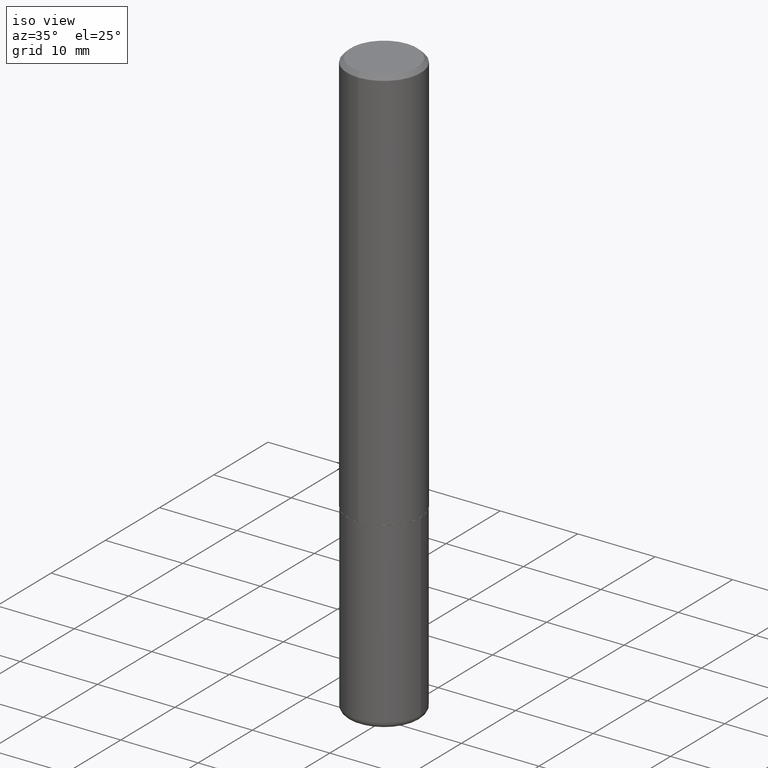
[diagram: clean part render]
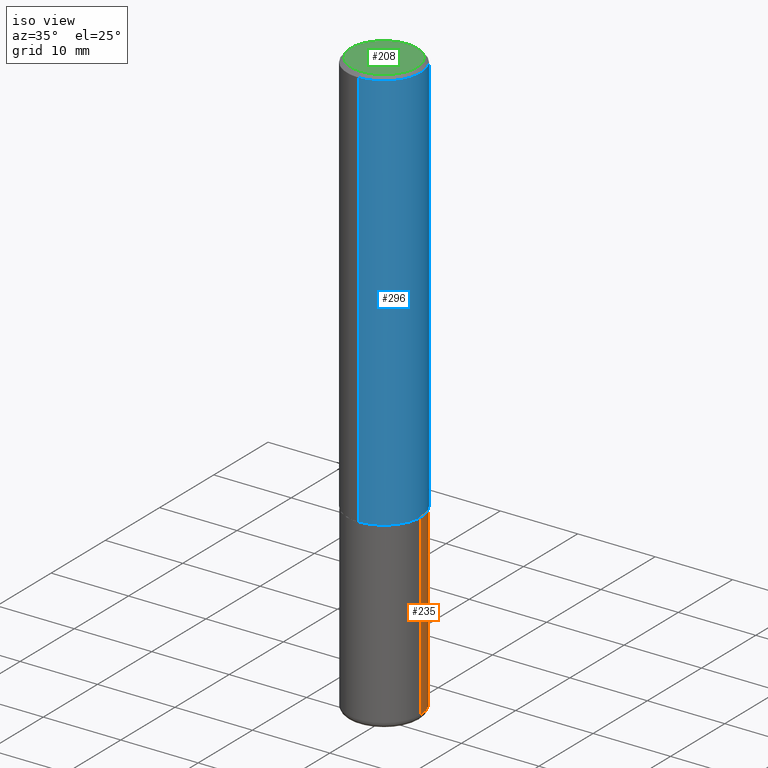
[diagram: same view with three faces highlighted in distinct colors, each labeled with its STEP entity id]
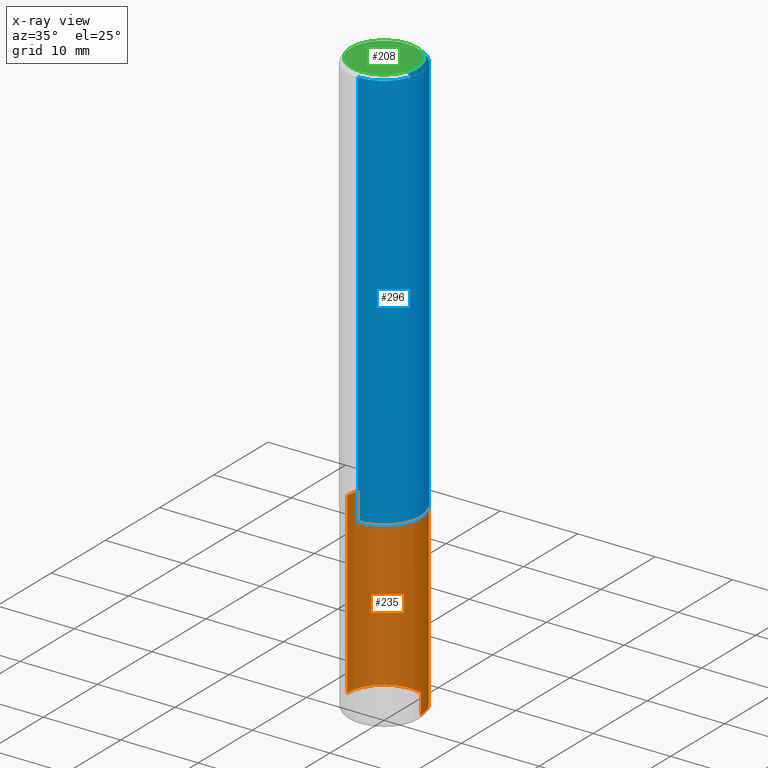
[diagram: x-ray of the same camera — body ghosted, the three highlighted faces saturated]
A machine part, iso view with three faces highlighted in distinct colors.
The next image is the same camera in x-ray (body ghosted, the three faces saturated) — at least one of them is partly hidden behind the body in this view.
Their STEP definitions:

[orange] entity #235 — the highlighted cylindrical surface (partial cylindrical patch) has radius 4.7625 mm, axis along (-0, 0, 1).
#7 = EDGE_CURVE ( 'NONE', #211, #114, #373, .T. ) ;
#9 = ORIENTED_EDGE ( 'NONE', *, *, #14, .F. ) ;
#14 = EDGE_CURVE ( 'NONE', #290, #372, #122, .T. ) ;
#27 = EDGE_CURVE ( 'NONE', #290, #211, #267, .T. ) ;
#29 = AXIS2_PLACEMENT_3D ( 'NONE', #119, #86, #209 ) ;
#38 = CARTESIAN_POINT ( 'NONE',  ( -0.1874999999999998335, -9.037431946813958291E-15, -2.970000000000000195 ) ) ;
#57 = ORIENTED_EDGE ( 'NONE', *, *, #274, .F. ) ;
#60 = DIRECTION ( 'NONE',  ( -2.445468806185136597E-29, 3.491481338843145583E-15, 1.000000000000000000 ) ) ;
#75 = FACE_OUTER_BOUND ( 'NONE', #94, .T. ) ;
#86 = DIRECTION ( 'NONE',  ( -2.445468806185136597E-29, 3.491481338843145583E-15, 1.000000000000000000 ) ) ;
#89 = CARTESIAN_POINT ( 'NONE',  ( 0.000000000000000000, 0.000000000000000000, 0.000000000000000000 ) ) ;
#93 = DIRECTION ( 'NONE',  ( 1.000000000000000000, -6.982962677686265922E-15, 4.876176775795935793E-29 ) ) ;
#94 = EDGE_LOOP ( 'NONE', ( #293, #178, #57, #9 ) ) ;
#114 = VERTEX_POINT ( 'NONE', #279 ) ;
#119 = CARTESIAN_POINT ( 'NONE',  ( 7.263042354369856275E-29, -1.036969957636414298E-14, -2.970000000000000195 ) ) ;
#122 = LINE ( 'NONE', #151, #336 ) ;
#133 = CARTESIAN_POINT ( 'NONE',  ( 0.1874999999999998335, -1.167900507843031957E-14, -2.970000000000000195 ) ) ;
#150 = CYLINDRICAL_SURFACE ( 'NONE', #329, 0.1875000000000000278 ) ;
#151 = CARTESIAN_POINT ( 'NONE',  ( 0.1875000000000000278, -1.309305502066175008E-15, 9.142831454617381013E-30 ) ) ;
#166 = CARTESIAN_POINT ( 'NONE',  ( 0.1875000000000000278, -8.510485763430163586E-15, -2.062500000000000000 ) ) ;
#171 = VECTOR ( 'NONE', #410, 39.37007874015748143 ) ;
#178 = ORIENTED_EDGE ( 'NONE', *, *, #7, .T. ) ;
#179 = DIRECTION ( 'NONE',  ( -2.445468806185136877E-29, 3.491481338843145188E-15, 1.000000000000000000 ) ) ;
#209 = DIRECTION ( 'NONE',  ( 1.000000000000000000, -6.982962677686261189E-15, 0.000000000000000000 ) ) ;
#211 = VERTEX_POINT ( 'NONE', #38 ) ;
#235 = ADVANCED_FACE ( 'NONE', ( #75 ), #150, .T. ) ;
#267 = CIRCLE ( 'NONE', #29, 0.1875000000000000278 ) ;
#274 = EDGE_CURVE ( 'NONE', #372, #114, #341, .T. ) ;
#279 = CARTESIAN_POINT ( 'NONE',  ( -0.1875000000000000278, -7.453172289313877932E-15, -2.062500000000000000 ) ) ;
#290 = VERTEX_POINT ( 'NONE', #133 ) ;
#293 = ORIENTED_EDGE ( 'NONE', *, *, #27, .T. ) ;
#329 = AXIS2_PLACEMENT_3D ( 'NONE', #89, #60, #93 ) ;
#336 = VECTOR ( 'NONE', #179, 39.37007874015748143 ) ;
#341 = CIRCLE ( 'NONE', #356, 0.1875000000000000278 ) ;
#342 = CARTESIAN_POINT ( 'NONE',  ( -0.1875000000000000278, 1.332267629550188046E-15, -9.223003294227947991E-30 ) ) ;
#343 = DIRECTION ( 'NONE',  ( -2.445468806185136597E-29, 3.491481338843145583E-15, 1.000000000000000000 ) ) ;
#344 = DIRECTION ( 'NONE',  ( 1.000000000000000000, -6.982962677686266711E-15, 0.000000000000000000 ) ) ;
#356 = AXIS2_PLACEMENT_3D ( 'NONE', #378, #343, #344 ) ;
#372 = VERTEX_POINT ( 'NONE', #166 ) ;
#373 = LINE ( 'NONE', #342, #171 ) ;
#378 = CARTESIAN_POINT ( 'NONE',  ( 5.043779412756844791E-29, -7.201180261363988578E-15, -2.062500000000000000 ) ) ;
#410 = DIRECTION ( 'NONE',  ( -2.445468806185136877E-29, 3.491481338843145188E-15, 1.000000000000000000 ) ) ;

[blue] entity #296 — the highlighted cylindrical surface (partial cylindrical patch) has radius 4.7625 mm, axis along (-0, 0, 1).
#5 = ORIENTED_EDGE ( 'NONE', *, *, #242, .F. ) ;
#16 = ORIENTED_EDGE ( 'NONE', *, *, #91, .T. ) ;
#19 = ORIENTED_EDGE ( 'NONE', *, *, #347, .F. ) ;
#26 = VERTEX_POINT ( 'NONE', #370 ) ;
#74 = LINE ( 'NONE', #397, #207 ) ;
#91 = EDGE_CURVE ( 'NONE', #237, #26, #134, .T. ) ;
#98 = CARTESIAN_POINT ( 'NONE',  ( -1.309305502066126296E-15, -0.1875000000000074662, -2.061499999999999666 ) ) ;
#100 = CARTESIAN_POINT ( 'NONE',  ( 0.000000000000000000, 0.000000000000000000, 0.000000000000000000 ) ) ;
#106 = CARTESIAN_POINT ( 'NONE',  ( -1.286343374582161774E-15, -0.1875000000000001110, -0.01999999999999938632 ) ) ;
#127 = LINE ( 'NONE', #283, #202 ) ;
#130 = DIRECTION ( 'NONE',  ( -2.444573509250226187E-29, 3.492763455011074571E-15, 1.000000000000000000 ) ) ;
#134 = CIRCLE ( 'NONE', #413, 0.1875000000000002498 ) ;
#142 = EDGE_CURVE ( 'NONE', #26, #230, #127, .T. ) ;
#148 = CIRCLE ( 'NONE', #375, 0.1875000000000000555 ) ;
#188 = AXIS2_PLACEMENT_3D ( 'NONE', #100, #254, #386 ) ;
#201 = DIRECTION ( 'NONE',  ( -2.444573509250225907E-29, 3.492763455011074571E-15, 1.000000000000000000 ) ) ;
#202 = VECTOR ( 'NONE', #246, 39.37007874015748143 ) ;
#206 = EDGE_LOOP ( 'NONE', ( #16, #234, #5, #19 ) ) ;
#207 = VECTOR ( 'NONE', #201, 39.37007874015748143 ) ;
#230 = VERTEX_POINT ( 'NONE', #232 ) ;
#232 = CARTESIAN_POINT ( 'NONE',  ( 1.309305502066175797E-15, 0.1874999999999999722, -0.02000000000000069084 ) ) ;
#233 = VERTEX_POINT ( 'NONE', #106 ) ;
#234 = ORIENTED_EDGE ( 'NONE', *, *, #142, .T. ) ;
#237 = VERTEX_POINT ( 'NONE', #98 ) ;
#242 = EDGE_CURVE ( 'NONE', #233, #230, #148, .T. ) ;
#246 = DIRECTION ( 'NONE',  ( -2.444573509250225907E-29, 3.492763455011074571E-15, 1.000000000000000000 ) ) ;
#251 = DIRECTION ( 'NONE',  ( -6.982962677686265922E-15, -1.000000000000000000, 3.483106191921934371E-15 ) ) ;
#254 = DIRECTION ( 'NONE',  ( -2.444573509250226187E-29, 3.492763455011074571E-15, 1.000000000000000000 ) ) ;
#258 = CARTESIAN_POINT ( 'NONE',  ( 5.039488289319341668E-29, -7.200331862505331176E-15, -2.061500000000000554 ) ) ;
#278 = CARTESIAN_POINT ( 'NONE',  ( 4.889147018500461238E-31, -6.985526910022160680E-17, -0.02000000000000003858 ) ) ;
#283 = CARTESIAN_POINT ( 'NONE',  ( 1.332267629550188637E-15, 0.1875000000000001388, -6.548931478145770245E-16 ) ) ;
#296 = ADVANCED_FACE ( 'NONE', ( #390 ), #381, .T. ) ;
#347 = EDGE_CURVE ( 'NONE', #237, #233, #74, .T. ) ;
#370 = CARTESIAN_POINT ( 'NONE',  ( 1.332267629550214473E-15, 0.1874999999999930611, -2.061500000000000998 ) ) ;
#375 = AXIS2_PLACEMENT_3D ( 'NONE', #278, #130, #251 ) ;
#379 = DIRECTION ( 'NONE',  ( -2.444573509250226187E-29, 3.492763455011074571E-15, 1.000000000000000000 ) ) ;
#381 = CYLINDRICAL_SURFACE ( 'NONE', #188, 0.1875000000000001388 ) ;
#383 = DIRECTION ( 'NONE',  ( -6.982962677686266711E-15, -1.000000000000000000, 2.913971193241876822E-15 ) ) ;
#386 = DIRECTION ( 'NONE',  ( -6.982962677686266711E-15, -1.000000000000000000, 3.492763455011074966E-15 ) ) ;
#390 = FACE_OUTER_BOUND ( 'NONE', #206, .T. ) ;
#397 = CARTESIAN_POINT ( 'NONE',  ( -1.309305502066175994E-15, -0.1875000000000001388, 6.548931478145770245E-16 ) ) ;
#413 = AXIS2_PLACEMENT_3D ( 'NONE', #258, #379, #383 ) ;

[green] entity #208 — the highlighted planar face has unit normal (0, -0, -1).
#25 = EDGE_LOOP ( 'NONE', ( #83, #357 ) ) ;
#35 = DIRECTION ( 'NONE',  ( 6.982962677686265922E-15, 1.000000000000000000, -3.492763455011074571E-15 ) ) ;
#68 = FACE_OUTER_BOUND ( 'NONE', #25, .T. ) ;
#70 = CARTESIAN_POINT ( 'NONE',  ( 8.295255739829216733E-46, -1.185211489382978269E-31, -3.393334546267520926E-17 ) ) ;
#83 = ORIENTED_EDGE ( 'NONE', *, *, #128, .T. ) ;
#92 = AXIS2_PLACEMENT_3D ( 'NONE', #392, #318, #35 ) ;
#118 = AXIS2_PLACEMENT_3D ( 'NONE', #70, #284, #417 ) ;
#128 = EDGE_CURVE ( 'NONE', #305, #404, #362, .T. ) ;
#138 = DIRECTION ( 'NONE',  ( -2.444573509250226187E-29, 3.492763455011074571E-15, 1.000000000000000000 ) ) ;
#162 = AXIS2_PLACEMENT_3D ( 'NONE', #380, #138, #322 ) ;
#175 = CARTESIAN_POINT ( 'NONE',  ( 1.239475875289312893E-15, 0.1675000000000000655, -6.189712241770304790E-16 ) ) ;
#191 = PLANE ( 'NONE',  #92 ) ;
#198 = CARTESIAN_POINT ( 'NONE',  ( -1.217738394604446837E-15, -0.1675000000000000655, 5.511045332516800112E-16 ) ) ;
#199 = EDGE_CURVE ( 'NONE', #404, #305, #204, .T. ) ;
#204 = CIRCLE ( 'NONE', #162, 0.1675000000000000655 ) ;
#208 = ADVANCED_FACE ( 'NONE', ( #68 ), #191, .F. ) ;
#284 = DIRECTION ( 'NONE',  ( -2.444573509250226187E-29, 3.492763455011074571E-15, 1.000000000000000000 ) ) ;
#305 = VERTEX_POINT ( 'NONE', #175 ) ;
#318 = DIRECTION ( 'NONE',  ( 2.444573509250225627E-29, -3.492763455011074571E-15, -1.000000000000000000 ) ) ;
#322 = DIRECTION ( 'NONE',  ( -6.982962677686264344E-15, -1.000000000000000000, 3.492763455011074177E-15 ) ) ;
#357 = ORIENTED_EDGE ( 'NONE', *, *, #199, .T. ) ;
#362 = CIRCLE ( 'NONE', #118, 0.1675000000000000655 ) ;
#380 = CARTESIAN_POINT ( 'NONE',  ( 8.295255739829216733E-46, -1.185211489382978269E-31, -3.393334546267520926E-17 ) ) ;
#392 = CARTESIAN_POINT ( 'NONE',  ( 1.169646248512449792E-15, 0.1675000000000000655, -6.020045514456927142E-16 ) ) ;
#404 = VERTEX_POINT ( 'NONE', #198 ) ;
#417 = DIRECTION ( 'NONE',  ( -6.982962677686264344E-15, -1.000000000000000000, 3.492763455011074177E-15 ) ) ;